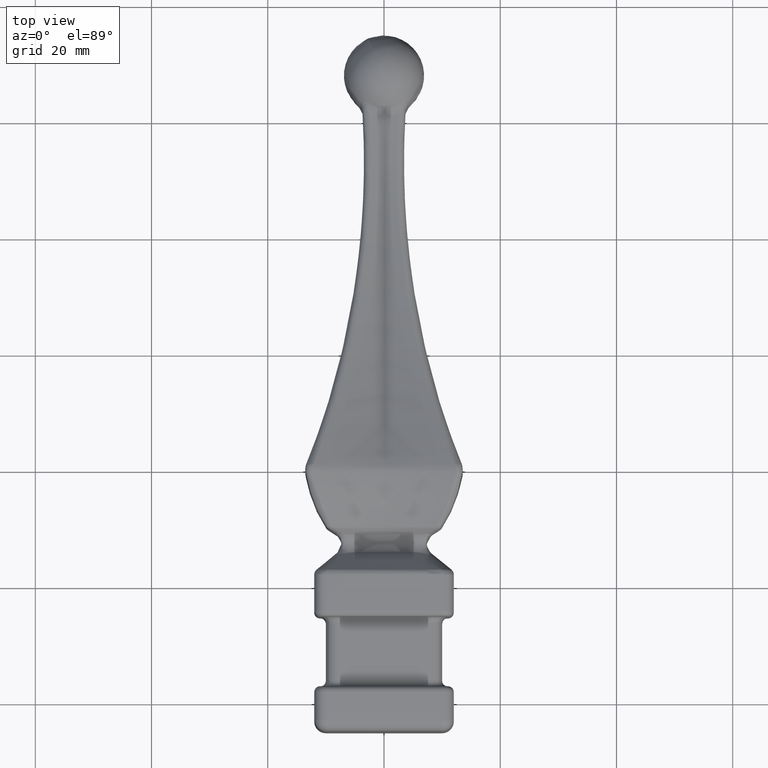
[diagram: clean part render]
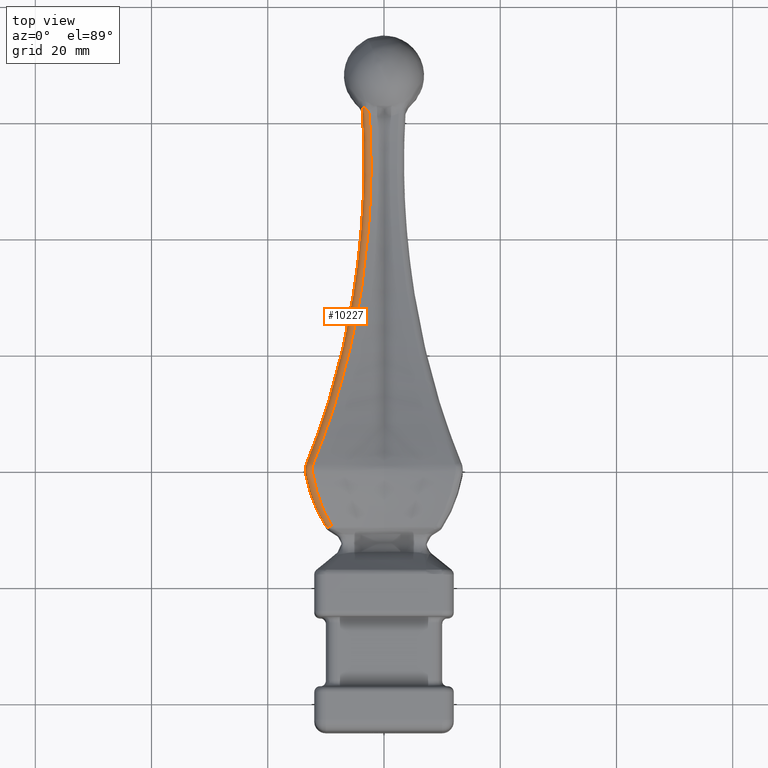
[diagram: same view with one face highlighted and labeled with its STEP entity id]
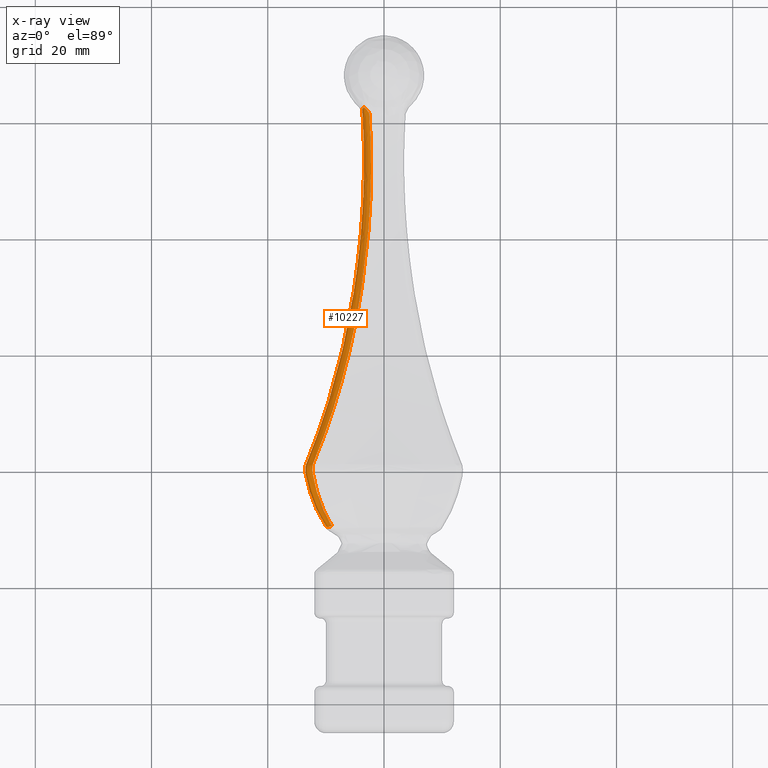
[diagram: x-ray of the same camera — body ghosted, the highlighted face saturated]
A machine part, top view. The second image highlights one B-rep face of the part: STEP entity #10227.
The next image is the same camera in x-ray: the body ghosted, the highlighted face saturated — about 0% of this face is hidden behind the body in this view.
In plain terms, the highlighted face is a freeform B-spline surface patch.
Its self-contained STEP definition (entity closure, byte-faithful):
#24 = CARTESIAN_POINT ( 'NONE',  ( -2.248223844444788178, 56.19453526402708832, 3.449850653065983153 ) ) ;
#80 = CARTESIAN_POINT ( 'NONE',  ( -11.90279690267748158, -6.148090847463154596, 10.77095154286621259 ) ) ;
#122 = FACE_OUTER_BOUND ( 'NONE', #2056, .T. ) ;
#433 = CARTESIAN_POINT ( 'NONE',  ( -12.48452443925548749, -4.618401350564075969, 11.32431623209212468 ) ) ;
#439 = EDGE_CURVE ( 'NONE', #1799, #20851, #14879, .T. ) ;
#508 = VERTEX_POINT ( 'NONE', #13500 ) ;
#516 = CARTESIAN_POINT ( 'NONE',  ( -12.19767723644729607, 0.9769426254686909283, 13.36861548744276007 ) ) ;
#633 = CARTESIAN_POINT ( 'NONE',  ( -3.769577960237448178, 31.72437716418659903, 5.007192858850624262 ) ) ;
#716 = CARTESIAN_POINT ( 'NONE',  ( -8.960507907512987202, 13.57310194948311199, 7.741963945561011862 ) ) ;
#724 = CARTESIAN_POINT ( 'NONE',  ( -9.400431207679385892, -8.996735772360395345, 10.44880235041356897 ) ) ;
#790 = CARTESIAN_POINT ( 'NONE',  ( -4.402747334172143034, 41.15290809311969866, 4.402747334188598316 ) ) ;
#859 = CARTESIAN_POINT ( 'NONE',  ( -8.627982012838199211, 10.66394846674926455, 9.839649501872981929 ) ) ;
#941 = CARTESIAN_POINT ( 'NONE',  ( -11.80478483299507531, 4.982200421302278137, 10.61327611492976963 ) ) ;
#1003 = ORIENTED_EDGE ( 'NONE', *, *, #11480, .T. ) ;
#1019 = CARTESIAN_POINT ( 'NONE',  ( -13.38126812955506217, 0.9418525283698102601, 12.20645514496492723 ) ) ;
#1090 = CARTESIAN_POINT ( 'NONE',  ( -13.40333249899606294, 0.8768738682596370904, 12.22198636324197274 ) ) ;
#1165 = CARTESIAN_POINT ( 'NONE',  ( -12.33043289832003886, -0.03797940678943351189, 13.54667987295747444 ) ) ;
#1252 = CARTESIAN_POINT ( 'NONE',  ( -13.56223076131568028, 1.538491771278700071, 13.56223076131583660 ) ) ;
#1332 = CARTESIAN_POINT ( 'NONE',  ( -12.19395955678100663, 0.9859073258095460979, 13.36495125930506056 ) ) ;
#1408 = CARTESIAN_POINT ( 'NONE',  ( -13.05141452949920122, -2.710405609226620438, 11.86593139384070028 ) ) ;
#1435 = CARTESIAN_POINT ( 'NONE',  ( -6.422514604118228831, 23.94084922074709354, 5.189081815503890915 ) ) ;
#1493 = CARTESIAN_POINT ( 'NONE',  ( -12.30546186044346335, -0.4753845923029134668, 13.51154824768028817 ) ) ;
#1578 = CARTESIAN_POINT ( 'NONE',  ( -13.50667727743624091, -0.5066034133016613650, 12.30171028719113124 ) ) ;
#1600 = VERTEX_POINT ( 'NONE', #15361 ) ;
#1605 = CARTESIAN_POINT ( 'NONE',  ( -5.464387132029138172, 29.03473407034504206, 4.227808590928948007 ) ) ;
#1620 = CARTESIAN_POINT ( 'NONE',  ( -3.252355884852120127, 62.34115619347710435, 3.652156903115480802 ) ) ;
#1655 = CARTESIAN_POINT ( 'NONE',  ( -13.85328956730696781, -0.8537979196460353526, 13.85328956730711880 ) ) ;
#1694 = CARTESIAN_POINT ( 'NONE',  ( -3.631873541139823747, 62.37266320989958501, 3.294522772040415770 ) ) ;
#1726 = CARTESIAN_POINT ( 'NONE',  ( -13.88469314016185940, -0.7173494205376530486, 13.88469314016189671 ) ) ;
#1769 = CARTESIAN_POINT ( 'NONE',  ( -3.748576545962349904, 61.84357532874339114, 2.795965211867254663 ) ) ;
#1799 = VERTEX_POINT ( 'NONE', #8200 ) ;
#2056 = EDGE_LOOP ( 'NONE', ( #20846, #18807, #13390, #9012, #1003, #14157, #3609, #12188 ) ) ;
#2455 = CARTESIAN_POINT ( 'NONE',  ( -11.54408524670200720, 7.006942690020829367, 11.54408524670879999 ) ) ;
#2528 = CARTESIAN_POINT ( 'NONE',  ( -3.431954327142998196, 50.35049512103505265, 2.211377162342109681 ) ) ;
#2604 = CARTESIAN_POINT ( 'NONE',  ( -4.217204919602864699, 37.89822222497094373, 2.980777483193488564 ) ) ;
#2693 = CARTESIAN_POINT ( 'NONE',  ( -9.839649501866508885, 10.66394846675729013, 8.627982012821895808 ) ) ;
#2836 = CARTESIAN_POINT ( 'NONE',  ( -13.54169476243304437, 1.571844469707222913, 13.54169476243305326 ) ) ;
#2916 = CARTESIAN_POINT ( 'NONE',  ( -12.04782467903556942, 1.339642077554493049, 13.22089888252120460 ) ) ;
#3000 = CARTESIAN_POINT ( 'NONE',  ( -12.29453779479637987, 0.4894121498002806381, 13.50172698660118620 ) ) ;
#3077 = CARTESIAN_POINT ( 'NONE',  ( -13.45884331461958006, 0.6831073659126257747, 12.26234079766303076 ) ) ;
#3152 = CARTESIAN_POINT ( 'NONE',  ( -13.94006037297484824, -0.3826489422712650579, 13.94006037297445921 ) ) ;
#3180 = CARTESIAN_POINT ( 'NONE',  ( -13.13493789343376328, 1.548602519664962207, 11.96059040414681540 ) ) ;
#3184 = CARTESIAN_POINT ( 'NONE',  ( -12.19767723644729607, 0.9769426254686909283, 13.36861548744276007 ) ) ;
#3240 = CARTESIAN_POINT ( 'NONE',  ( -12.52142356352416286, -5.462865862734586742, 12.52142356353116703 ) ) ;
#3326 = CARTESIAN_POINT ( 'NONE',  ( -13.42925135781263180, -0.9465935901170402511, 12.22762337275920963 ) ) ;
#3405 = CARTESIAN_POINT ( 'NONE',  ( -13.76400304917824258, -1.298973658027190892, 13.76400304917985018 ) ) ;
#3487 = CARTESIAN_POINT ( 'NONE',  ( -13.31820788544052725, -3.141741869789310027, 13.31820788543708822 ) ) ;
#3570 = CARTESIAN_POINT ( 'NONE',  ( -13.23848225608794671, -1.931846347250810503, 12.04503809015938209 ) ) ;
#3609 = ORIENTED_EDGE ( 'NONE', *, *, #7221, .T. ) ;
#4288 = CARTESIAN_POINT ( 'NONE',  ( -12.87433009579685006, 2.199404871999234068, 11.69636601728563363 ) ) ;
#4300 = CARTESIAN_POINT ( 'NONE',  ( -9.776858195962123688, -8.311032877648415251, 10.85018358288282059 ) ) ;
#4372 = CARTESIAN_POINT ( 'NONE',  ( -3.798385037785361185, 62.93785238516743874, 2.638763930889289178 ) ) ;
#4417 = CARTESIAN_POINT ( 'NONE',  ( -13.50771400292946822, -0.5004763222710708614, 12.30270213297043647 ) ) ;
#4452 = CARTESIAN_POINT ( 'NONE',  ( -2.980777483188201682, 37.89822222492716008, 4.217204919605191726 ) ) ;
#4503 = EDGE_CURVE ( 'NONE', #18398, #10012, #5342, .T. ) ;
#4526 = CARTESIAN_POINT ( 'NONE',  ( -11.42102726341314067, 2.892134802298794494, 12.60257755443041283 ) ) ;
#4597 = CARTESIAN_POINT ( 'NONE',  ( -5.484294055111770483, 32.04773230861393785, 5.484294055093898557 ) ) ;
#4682 = CARTESIAN_POINT ( 'NONE',  ( -13.54512764544084646, 1.566314527618998476, 13.54512764544086423 ) ) ;
#4752 = CARTESIAN_POINT ( 'NONE',  ( -12.25007362603857608, 0.7475185358523521728, 13.44228999254007562 ) ) ;
#4821 = CARTESIAN_POINT ( 'NONE',  ( -12.21040539087637100, 0.9256200652745263380, 13.38690819332969362 ) ) ;
#4902 = CARTESIAN_POINT ( 'NONE',  ( -12.20140543795320376, 0.9621337659603708126, 13.37400130160987999 ) ) ;
#4987 = CARTESIAN_POINT ( 'NONE',  ( -12.32076898977079793, -0.3014265071949955854, 13.53279460127677325 ) ) ;
#5006 = CARTESIAN_POINT ( 'NONE',  ( -11.32432571017037581, -4.618372703081292663, 12.48453438162288442 ) ) ;
#5061 = CARTESIAN_POINT ( 'NONE',  ( -13.50351805690313789, -0.5252360840923767649, 12.29868780021782193 ) ) ;
#5132 = CARTESIAN_POINT ( 'NONE',  ( -11.44926094928572802, -4.219170360027184152, 12.61533578828334079 ) ) ;
#5160 = CARTESIAN_POINT ( 'NONE',  ( -4.441334683114437354, 35.42566771208878151, 3.203183386083685136 ) ) ;
#5219 = CARTESIAN_POINT ( 'NONE',  ( -10.80285376863054303, -8.391535125749429724, 9.732487098091601396 ) ) ;
#5302 = CARTESIAN_POINT ( 'NONE',  ( -8.997235154552653213, -9.640701102045685644, 10.01512400569150785 ) ) ;
#5342 = B_SPLINE_CURVE_WITH_KNOTS ( 'NONE', 3,
 ( #21962, #13050, #9503, #7747, #11864, #4417 ),
 .UNSPECIFIED., .F., .F.,
 ( 4, 2, 4 ),
 ( -5.943326225920290571E-08, 0.0007603462467077775396, 0.001520751926677814435 ),
 .UNSPECIFIED. ) ;
#5344 = CARTESIAN_POINT ( 'NONE',  ( -3.115328726260733205, 62.22348999766997224, 3.706509491035376413 ) ) ;
#5377 = CARTESIAN_POINT ( 'NONE',  ( -13.52180532417211900, -0.4006648856618953980, 12.31285546356686567 ) ) ;
#5843 = DIRECTION ( 'NONE',  ( -0.4915972699089484754, 0.7187936062849494823, 0.4915972699089627418 ) ) ;
#6245 = CARTESIAN_POINT ( 'NONE',  ( -6.156998280119034384, 19.51042322207859669, 7.385984421746105255 ) ) ;
#6330 = CARTESIAN_POINT ( 'NONE',  ( -12.79799194350365887, 3.506474230274760462, 12.79799194351399017 ) ) ;
#6406 = CARTESIAN_POINT ( 'NONE',  ( -3.863831940853693858, 50.31891960752938786, 3.863831940847366919 ) ) ;
#6476 = CARTESIAN_POINT ( 'NONE',  ( -13.41356379060010440, 0.8444833756077366749, 12.22930620683969849 ) ) ;
#6497 = CARTESIAN_POINT ( 'NONE',  ( -2.523706378309665155, 61.43058906007769338, 3.695224056027350823 ) ) ;
#6548 = CARTESIAN_POINT ( 'NONE',  ( -12.19673520044788972, 0.9792140910690176892, 13.36768699753046086 ) ) ;
#6639 = CARTESIAN_POINT ( 'NONE',  ( -13.36953209988951308, 0.9744822882972673517, 12.19835714437990681 ) ) ;
#6719 = CARTESIAN_POINT ( 'NONE',  ( -12.26234079766269325, 0.6831073659128157338, 13.45884331461953565 ) ) ;
#6737 = CARTESIAN_POINT ( 'NONE',  ( -12.30270213297036364, -0.5004763222710713055, 13.50771400292952507 ) ) ;
#6743 = CARTESIAN_POINT ( 'NONE',  ( -11.58129466433951471, 5.603009350150074397, 10.38733853637755900 ) ) ;
#6791 = CARTESIAN_POINT ( 'NONE',  ( -13.50772837704169405, -0.5003923990440951597, 12.30271588560029805 ) ) ;
#6817 = CARTESIAN_POINT ( 'NONE',  ( -3.432213147307811241, 50.95405950119681648, 2.213525492999731448 ) ) ;
#6873 = CARTESIAN_POINT ( 'NONE',  ( -11.21170854079714374, -4.951049307261612853, 12.36634588744684748 ) ) ;
#6964 = CARTESIAN_POINT ( 'NONE',  ( -10.67877515922596032, -6.371196328522109376, 11.80560033026454647 ) ) ;
#6992 = CARTESIAN_POINT ( 'NONE',  ( -3.288799620354170283, 35.30751676384008420, 4.526068070377410102 ) ) ;
#7042 = CARTESIAN_POINT ( 'NONE',  ( -9.732487098094239286, -8.391535125751687474, 10.80285376863018243 ) ) ;
#7063 = CARTESIAN_POINT ( 'NONE',  ( -9.213012362035419400, 12.75045876638583131, 7.996521701733920295 ) ) ;
#7066 = CARTESIAN_POINT ( 'NONE',  ( -2.523706378309665155, 61.43058906007769338, 3.695224056027350823 ) ) ;
#7110 = CARTESIAN_POINT ( 'NONE',  ( -13.51757662920072711, -0.4338144889486579281, 12.30980438177495806 ) ) ;
#7140 = CARTESIAN_POINT ( 'NONE',  ( -10.37899743541500364, 5.571035020128219273, 11.57336052441662311 ) ) ;
#7221 = EDGE_CURVE ( 'NONE', #20851, #1600, #19613, .T. ) ;
#7228 = CARTESIAN_POINT ( 'NONE',  ( -8.013526271529634926, 12.69445473075777464, 9.229881943224519603 ) ) ;
#7325 = CARTESIAN_POINT ( 'NONE',  ( -3.571867649209936157, 62.42559179444560158, 3.391111598614764855 ) ) ;
#7422 = DIRECTION ( 'NONE',  ( 0.000000000000000000, -0.5645205233115216936, 0.8254190322255028356 ) ) ;
#7622 = AXIS2_PLACEMENT_3D ( 'NONE', #18154, #5843, #7422 ) ;
#7747 = CARTESIAN_POINT ( 'NONE',  ( -13.55402796878899530, 0.0009056597423814681047, 12.33586052695374313 ) ) ;
#7854 = CARTESIAN_POINT ( 'NONE',  ( -2.686723043082017259, 40.99846847921598680, 3.921187517363745378 ) ) ;
#7922 = CARTESIAN_POINT ( 'NONE',  ( -13.39110200500840975, 1.949796063455670803, 13.39110200500759262 ) ) ;
#7948 = CARTESIAN_POINT ( 'NONE',  ( -12.30774465884626601, 0.3783702083953713324, 13.51861134896864769 ) ) ;
#7976 = B_SPLINE_CURVE_WITH_KNOTS ( 'NONE', 3,
 ( #23156, #17872, #18199, #22714, #20610, #11309, #433, #80, #16506, #17118, #16900, #13374 ),
 .UNSPECIFIED., .F., .F.,
 ( 4, 2, 2, 2, 2, 4 ),
 ( -5.992872993461137931E-08, 0.001313099461609976018, 0.002626258851949887611, 0.005252577632629711231, 0.007878896413309533983, 0.01050521519398935587 ),
 .UNSPECIFIED. ) ;
#7999 = CARTESIAN_POINT ( 'NONE',  ( -3.984080229091943703, 47.28301666521502966, 3.984080229075713575 ) ) ;
#8083 = CARTESIAN_POINT ( 'NONE',  ( -2.638763930889279408, 62.93785238516740321, 3.798385037785392715 ) ) ;
#8162 = CARTESIAN_POINT ( 'NONE',  ( -3.868863146074934978, 59.53371391711968386, 3.868863146069108971 ) ) ;
#8200 = CARTESIAN_POINT ( 'NONE',  ( -10.01512400570120498, -9.640701102031231429, 8.997235154561668224 ) ) ;
#8229 = CARTESIAN_POINT ( 'NONE',  ( -12.20038990140630553, 0.9661895485920339866, 13.37253709133566204 ) ) ;
#8311 = CARTESIAN_POINT ( 'NONE',  ( -13.63908405949562486, 1.400484186054067992, 13.63908405949599079 ) ) ;
#8388 = CARTESIAN_POINT ( 'NONE',  ( -13.52139683395512293, 0.3596715241581475153, 12.30991231324542845 ) ) ;
#8465 = CARTESIAN_POINT ( 'NONE',  ( -13.85593945931273119, 0.8496787735769865124, 13.85593945931246296 ) ) ;
#8537 = CARTESIAN_POINT ( 'NONE',  ( -13.53786598107895323, -0.2355465603880719794, 12.32439489359360252 ) ) ;
#8628 = CARTESIAN_POINT ( 'NONE',  ( -12.29868780021769403, -0.5252360840923738783, 13.50351805690318763 ) ) ;
#8708 = CARTESIAN_POINT ( 'NONE',  ( -13.89607406561708380, -0.6620306731890510665, 13.89607406561710690 ) ) ;
#8768 = B_SPLINE_CURVE_WITH_KNOTS ( 'NONE', 3,
 ( #3184, #23239, #7140, #18042, #7228, #19863, #12451, #9064, #6992, #21685, #16050, #12694, #8982, #10885, #21367, #24, #17876, #7066 ),
 .UNSPECIFIED., .F., .F.,
 ( 4, 2, 2, 2, 2, 2, 2, 2, 4 ),
 ( -6.000000000590947881E-08, 0.007886620862335245313, 0.01577330172467049721, 0.03154666344934100447, 0.03943334431167624943, 0.04337668474284388231, 0.04732002517401152214, 0.05520670603634676016, 0.06309338689868199124 ),
 .UNSPECIFIED. ) ;
#8789 = CARTESIAN_POINT ( 'NONE',  ( -11.52925954599040104, -7.602540759423842331, 11.52925954599395553 ) ) ;
#8868 = CARTESIAN_POINT ( 'NONE',  ( -10.34030679734054559, -9.558936278622990557, 10.34030679735184499 ) ) ;
#8929 = EDGE_CURVE ( 'NONE', #19732, #508, #9384, .T. ) ;
#8953 = CARTESIAN_POINT ( 'NONE',  ( -11.86593139384248374, -2.710405609227513501, 13.05141452949949255 ) ) ;
#8982 = CARTESIAN_POINT ( 'NONE',  ( -2.470401182900002546, 44.40736026944478709, 3.700616001138707922 ) ) ;
#9012 = ORIENTED_EDGE ( 'NONE', *, *, #4503, .T. ) ;
#9064 = CARTESIAN_POINT ( 'NONE',  ( -3.632071813035484098, 32.73553211399496377, 4.869592651168730413 ) ) ;
#9076 = CARTESIAN_POINT ( 'NONE',  ( -3.033350388177439072, 62.13222838701520345, 3.723208996789211245 ) ) ;
#9086 = CARTESIAN_POINT ( 'NONE',  ( -12.19767723644729607, 0.9769426254686909283, 13.36861548744276007 ) ) ;
#9384 = B_SPLINE_CURVE_WITH_KNOTS ( 'NONE', 3,
 ( #16312, #19647, #12466, #9076, #5344, #1620, #19731, #14349, #10739, #23336, #7325, #1694, #19798, #17976, #23412, #1769, #16229, #18054 ),
 .UNSPECIFIED., .F., .F.,
 ( 4, 2, 2, 2, 2, 2, 2, 2, 4 ),
 ( 2.030032399778958350E-15, 0.0007444630286634647265, 0.001116694542994174470, 0.001302810300159535414, 0.001488926057324896140, 0.001675041814490256867, 0.001861157571655617377, 0.002233389085986340564, 0.002977852114647786073 ),
 .UNSPECIFIED. ) ;
#9503 = CARTESIAN_POINT ( 'NONE',  ( -13.50698150542802800, 0.5028577278399699590, 12.29850997811512059 ) ) ;
#9562 = CARTESIAN_POINT ( 'NONE',  ( -12.30270213297036364, -0.5004763222710713055, 13.50771400292952507 ) ) ;
#9609 = CARTESIAN_POINT ( 'NONE',  ( -13.36861548744270856, 0.9769426254686837119, 12.19767723644735824 ) ) ;
#9677 = CARTESIAN_POINT ( 'NONE',  ( -5.007192858853191986, 31.72437716414287223, 3.769577960231970337 ) ) ;
#9812 = B_SPLINE_CURVE_WITH_KNOTS ( 'NONE', 3,
 ( #12210, #17628, #12295, #6817, #19468, #12447, #5160, #1605, #17792, #21273, #1435, #21362, #14014, #7063, #10472, #14253, #6743, #17542, #23080, #19712, #3180, #21118 ),
 .UNSPECIFIED., .F., .F.,
 ( 4, 2, 2, 2, 2, 2, 2, 2, 2, 2, 4 ),
 ( 0.003593303953008576083, 0.01153155944662574532, 0.01946981494024291673, 0.03534632592747725260, 0.03931545367428582877, 0.04328458142109441187, 0.05122283691471155725, 0.05916109240832869570, 0.06313022015513727880, 0.06511478402854156688, 0.06709934790194584109 ),
 .UNSPECIFIED. ) ;
#9834 = CARTESIAN_POINT ( 'NONE',  ( -3.449391815735200595, 56.62704108878103426, 2.249091549836525150 ) ) ;
#9849 = CARTESIAN_POINT ( 'NONE',  ( -10.77095949093749994, -6.148071323023853729, 11.90280527964085699 ) ) ;
#9909 = CARTESIAN_POINT ( 'NONE',  ( -5.963592964995582335, 29.04094732719951821, 5.963592964984351319 ) ) ;
#9981 = CARTESIAN_POINT ( 'NONE',  ( -5.460242715525834178, 22.53190200970158941, 6.692733564547446612 ) ) ;
#10012 = VERTEX_POINT ( 'NONE', #21937 ) ;
#10062 = CARTESIAN_POINT ( 'NONE',  ( -13.37400130160984801, 0.9621337659602966497, 12.20140543795325883 ) ) ;
#10136 = CARTESIAN_POINT ( 'NONE',  ( -13.70876764105513246, 1.256784635202361722, 13.70876764105459067 ) ) ;
#10207 = CARTESIAN_POINT ( 'NONE',  ( -12.30991231324518687, 0.3596715241595110357, 13.52139683395505543 ) ) ;
#10227 = ADVANCED_FACE ( 'NONE', ( #122 ), #20939, .T. ) ;
#10291 = CARTESIAN_POINT ( 'NONE',  ( -13.53651159077174526, 1.580111780176339353, 13.53651159077179855 ) ) ;
#10367 = CARTESIAN_POINT ( 'NONE',  ( -13.36768699753040934, 0.9792140910689969280, 12.19673520044796078 ) ) ;
#10450 = CARTESIAN_POINT ( 'NONE',  ( -13.50615118937241199, -0.5097088866048387068, 12.30120697062109691 ) ) ;
#10472 = CARTESIAN_POINT ( 'NONE',  ( -9.954568176066437957, 10.33677143971205048, 8.744111148807586886 ) ) ;
#10522 = CARTESIAN_POINT ( 'NONE',  ( -13.50838453510239034, -0.4961972667008682780, 12.30318451365496912 ) ) ;
#10615 = CARTESIAN_POINT ( 'NONE',  ( -12.22762337275810296, -0.9465935901170828837, 13.42925135781241863 ) ) ;
#10697 = CARTESIAN_POINT ( 'NONE',  ( -9.375420917482845340, -9.036681003958525693, 10.42190124078923219 ) ) ;
#10739 = CARTESIAN_POINT ( 'NONE',  ( -3.446011998481944172, 62.44334882949047483, 3.529125878908122349 ) ) ;
#10769 = CARTESIAN_POINT ( 'NONE',  ( -11.87898892354403202, -6.911310455332640323, 11.87898892353742752 ) ) ;
#10885 = CARTESIAN_POINT ( 'NONE',  ( -2.272466878236810039, 48.33731338232261976, 3.496679037149846625 ) ) ;
#11309 = CARTESIAN_POINT ( 'NONE',  ( -12.74012494436458454, -3.827608631173788023, 11.56839867573606639 ) ) ;
#11375 = EDGE_CURVE ( 'NONE', #508, #18398, #9812, .T. ) ;
#11378 = CARTESIAN_POINT ( 'NONE',  ( -12.22674938425930868, 0.8621772917826430183, 13.41070860097108053 ) ) ;
#11480 = EDGE_CURVE ( 'NONE', #10012, #1799, #7976, .T. ) ;
#11594 = CARTESIAN_POINT ( 'NONE',  ( -2.211377162345854686, 50.35049512102410318, 3.431954327143848626 ) ) ;
#11745 = CARTESIAN_POINT ( 'NONE',  ( -3.921187517365302799, 40.99846847923800652, 2.686723043090809337 ) ) ;
#11824 = CARTESIAN_POINT ( 'NONE',  ( -10.13275614324437512, 11.30313112845079715, 10.13275614323025131 ) ) ;
#11864 = CARTESIAN_POINT ( 'NONE',  ( -13.54672219189079563, -0.2516042753707571356, 12.33076236057471142 ) ) ;
#11893 = CARTESIAN_POINT ( 'NONE',  ( -13.52900945861640736, 1.595413136371608420, 13.52900945861651216 ) ) ;
#11955 = CARTESIAN_POINT ( 'NONE',  ( -13.52691648795842738, 1.600773869168594210, 13.52691648795844692 ) ) ;
#12040 = CARTESIAN_POINT ( 'NONE',  ( -13.54667987295745490, -0.03797940679144739401, 12.33043289832058775 ) ) ;
#12114 = CARTESIAN_POINT ( 'NONE',  ( -13.96572705236419942, -0.04308259252941726986, 13.96572705236521550 ) ) ;
#12185 = CARTESIAN_POINT ( 'NONE',  ( -13.50172698660093573, 0.4894121498005918891, 12.29453779479593045 ) ) ;
#12188 = ORIENTED_EDGE ( 'NONE', *, *, #12563, .T. ) ;
#12210 = CARTESIAN_POINT ( 'NONE',  ( -3.695224056026934711, 61.43058906007142639, 2.523706378309225951 ) ) ;
#12267 = CARTESIAN_POINT ( 'NONE',  ( -12.04503809016354232, -1.931846347250658180, 13.23848225608907114 ) ) ;
#12295 = CARTESIAN_POINT ( 'NONE',  ( -3.449601854812960333, 56.17701402384282972, 2.247909891662708937 ) ) ;
#12347 = CARTESIAN_POINT ( 'NONE',  ( -12.30456690580621171, -0.4837052869231554530, 13.51030539660971108 ) ) ;
#12427 = CARTESIAN_POINT ( 'NONE',  ( -12.30271588560023588, -0.5003923990441018210, 13.50772837704176155 ) ) ;
#12447 = CARTESIAN_POINT ( 'NONE',  ( -3.897992912293513079, 40.57451386293882933, 2.661888795475149561 ) ) ;
#12451 = CARTESIAN_POINT ( 'NONE',  ( -4.868208952265602463, 25.07156246923149112, 6.103746555218289238 ) ) ;
#12466 = CARTESIAN_POINT ( 'NONE',  ( -2.796620584201452875, 61.84475045251418379, 3.748846696855755667 ) ) ;
#12498 = CARTESIAN_POINT ( 'NONE',  ( -13.85646695438762777, -0.8373545383933431729, 13.85646695438768994 ) ) ;
#12563 = EDGE_CURVE ( 'NONE', #1600, #17728, #13982, .T. ) ;
#12589 = CARTESIAN_POINT ( 'NONE',  ( -12.31285546356680882, -0.4006648856617398557, 13.52180532417219716 ) ) ;
#12694 = CARTESIAN_POINT ( 'NONE',  ( -2.554689576418710750, 43.09787803144320151, 3.786496667960323137 ) ) ;
#13050 = CARTESIAN_POINT ( 'NONE',  ( -13.45352770620779737, 0.7454325682719350477, 12.25632294754217533 ) ) ;
#13306 = CARTESIAN_POINT ( 'NONE',  ( -7.741963945556753934, 13.57310194944834869, 8.960507907518081794 ) ) ;
#13374 = CARTESIAN_POINT ( 'NONE',  ( -10.01512400570120498, -9.640701102031231429, 8.997235154561668224 ) ) ;
#13381 = CARTESIAN_POINT ( 'NONE',  ( -3.528660303183735358, 47.22458712349514087, 2.302189102655563868 ) ) ;
#13390 = ORIENTED_EDGE ( 'NONE', *, *, #11375, .T. ) ;
#13394 = CARTESIAN_POINT ( 'NONE',  ( -10.46168028745711354, -6.886982773565827998, 11.57669964646997585 ) ) ;
#13463 = CARTESIAN_POINT ( 'NONE',  ( -3.811697023640891580, 56.50967674097948645, 3.811697023646884563 ) ) ;
#13500 = CARTESIAN_POINT ( 'NONE',  ( -3.695224056026934711, 61.43058906007142639, 2.523706378309225951 ) ) ;
#13542 = CARTESIAN_POINT ( 'NONE',  ( -7.783308950283614358, 20.04093233282458542, 7.783308950263919002 ) ) ;
#13608 = CARTESIAN_POINT ( 'NONE',  ( -13.05772237916842293, 2.814780680116157896, 13.05772237917195611 ) ) ;
#13685 = CARTESIAN_POINT ( 'NONE',  ( -12.22198636324183774, 0.8768738682591395994, 13.40333249899623347 ) ) ;
#13764 = CARTESIAN_POINT ( 'NONE',  ( -13.38690819332971671, 0.9256200652742205826, 12.21040539087638699 ) ) ;
#13829 = CARTESIAN_POINT ( 'NONE',  ( -12.20645514496484374, 0.9418525283696824735, 13.38126812955514744 ) ) ;
#13900 = CARTESIAN_POINT ( 'NONE',  ( -13.53279460127675904, -0.3014265071945101959, 12.32076898977090273 ) ) ;
#13982 = B_SPLINE_CURVE_WITH_KNOTS ( 'NONE', 3,
 ( #9562, #20591, #18775, #7948, #22168, #22024, #11378, #516 ),
 .UNSPECIFIED., .F., .F.,
 ( 4, 2, 2, 4 ),
 ( -5.999999998781168022E-08, 0.0007538442809195564304, 0.001130796421379328233, 0.001507748561839100361 ),
 .UNSPECIFIED. ) ;
#13987 = CARTESIAN_POINT ( 'NONE',  ( -13.96052200919904962, 0.1841153606080701277, 13.96052200919905317 ) ) ;
#14014 = CARTESIAN_POINT ( 'NONE',  ( -7.856967422305180193, 17.66019300185967111, 6.630885813753544689 ) ) ;
#14067 = CARTESIAN_POINT ( 'NONE',  ( -12.61533578828352198, -4.219170360028073219, 11.44926094928761806 ) ) ;
#14141 = CARTESIAN_POINT ( 'NONE',  ( -13.85710191274126757, -0.8340652588891936947, 13.85710191274134928 ) ) ;
#14157 = ORIENTED_EDGE ( 'NONE', *, *, #439, .T. ) ;
#14223 = CARTESIAN_POINT ( 'NONE',  ( -13.85073757689208662, -0.8669521810696065867, 13.85073757689207774 ) ) ;
#14253 = CARTESIAN_POINT ( 'NONE',  ( -11.16262982213287280, 6.778637263769911492, 9.964173630148602356 ) ) ;
#14305 = CARTESIAN_POINT ( 'NONE',  ( -12.29666428334047801, -0.5376566796935973169, 13.50140304014764325 ) ) ;
#14349 = CARTESIAN_POINT ( 'NONE',  ( -3.396723099897188902, 62.42786497454219585, 3.567817762555100636 ) ) ;
#14381 = CARTESIAN_POINT ( 'NONE',  ( -13.86524582984781162, -0.7999798512792967164, 13.86524582984795551 ) ) ;
#14879 = CIRCLE ( 'NONE', #7622, 0.9999999999999996669 ) ;
#15099 = CARTESIAN_POINT ( 'NONE',  ( -11.69636601728092984, 2.199404871999816269, 12.87433009579548404 ) ) ;
#15176 = CARTESIAN_POINT ( 'NONE',  ( -7.120409269704098598, 23.00432760762199180, 7.120409269714989442 ) ) ;
#15249 = CARTESIAN_POINT ( 'NONE',  ( -4.701166080800727620, 38.12792160248796591, 4.701166080818388160 ) ) ;
#15324 = CARTESIAN_POINT ( 'NONE',  ( -11.29623406516835615, 6.391232765588092946, 10.09914229369396033 ) ) ;
#15361 = CARTESIAN_POINT ( 'NONE',  ( -12.30270213297036364, -0.5004763222710713055, 13.50771400292952507 ) ) ;
#15410 = CARTESIAN_POINT ( 'NONE',  ( -2.375923727255544904, 59.77906557867611781, 3.562759125217406009 ) ) ;
#15481 = CARTESIAN_POINT ( 'NONE',  ( -13.53162496009078986, 1.587979800077253811, 13.53162496009086269 ) ) ;
#15548 = CARTESIAN_POINT ( 'NONE',  ( -13.53445814343625209, 1.583231787854254335, 13.53445814343631604 ) ) ;
#15625 = CARTESIAN_POINT ( 'NONE',  ( -12.32439489359376772, -0.2355465603891051529, 13.53786598107904027 ) ) ;
#15645 = CARTESIAN_POINT ( 'NONE',  ( -11.56840857530102973, -3.827575153167911193, 12.74013530913124370 ) ) ;
#15704 = CARTESIAN_POINT ( 'NONE',  ( -13.29056207051242211, 1.167982568877024008, 12.11848636320160999 ) ) ;
#15782 = CARTESIAN_POINT ( 'NONE',  ( -13.92599921453831513, -0.4947431303237822542, 13.92599921453846434 ) ) ;
#15853 = CARTESIAN_POINT ( 'NONE',  ( -13.86855803560795763, -0.7862529356707175232, 13.86855803560804823 ) ) ;
#15937 = CARTESIAN_POINT ( 'NONE',  ( -12.80739950401615701, -4.711251444699085411, 12.80739950401956939 ) ) ;
#16024 = CARTESIAN_POINT ( 'NONE',  ( -10.38340695789523949, -7.059477328863430934, 11.49387387461986876 ) ) ;
#16050 = CARTESIAN_POINT ( 'NONE',  ( -2.758457842424546502, 40.49079789563734266, 3.992793830233204666 ) ) ;
#16097 = CARTESIAN_POINT ( 'NONE',  ( -9.885458250316897733, -10.15949358203598862, 9.885458250316892403 ) ) ;
#16178 = CARTESIAN_POINT ( 'NONE',  ( -13.53777388149086924, -2.328396550453926572, 13.53777388148480476 ) ) ;
#16229 = CARTESIAN_POINT ( 'NONE',  ( -3.731018011431741055, 61.63773924430265794, 2.655469024394625954 ) ) ;
#16312 = CARTESIAN_POINT ( 'NONE',  ( -2.523706378309665155, 61.43058906007769338, 3.695224056027350823 ) ) ;
#16506 = CARTESIAN_POINT ( 'NONE',  ( -11.57669241233035073, -6.886998005491735242, 10.46167344811573052 ) ) ;
#16900 = CARTESIAN_POINT ( 'NONE',  ( -10.44880007425088131, -8.996739152213846680, 9.400429091503228918 ) ) ;
#16907 = CARTESIAN_POINT ( 'NONE',  ( -13.22089888252081380, 1.339642077554619171, 12.04782467903445742 ) ) ;
#16974 = CARTESIAN_POINT ( 'NONE',  ( -10.09914229368585836, 6.391232765592114617, 11.29623406516503969 ) ) ;
#17064 = CARTESIAN_POINT ( 'NONE',  ( -7.385984421751436990, 19.51042322204381918, 6.156998280114576616 ) ) ;
#17118 = CARTESIAN_POINT ( 'NONE',  ( -10.85017937761812590, -8.311040068176104967, 9.776854252394683087 ) ) ;
#17140 = CARTESIAN_POINT ( 'NONE',  ( -12.60257755443253558, 2.892134802298889529, 11.42102726342121066 ) ) ;
#17215 = CARTESIAN_POINT ( 'NONE',  ( -3.562759125218037504, 59.77906557868394088, 2.375923727255955686 ) ) ;
#17283 = CARTESIAN_POINT ( 'NONE',  ( -13.61461288436254868, 1.447190906807956479, 13.61461288436291461 ) ) ;
#17368 = CARTESIAN_POINT ( 'NONE',  ( -12.19885821162449169, 0.9722727516432225769, 13.37032429199827277 ) ) ;
#17447 = CARTESIAN_POINT ( 'NONE',  ( -12.19730864269380355, 0.9781737144642463910, 13.36814956481220840 ) ) ;
#17463 = CARTESIAN_POINT ( 'NONE',  ( -11.98926393624583220, -2.193100627539902536, 13.18030409120434499 ) ) ;
#17517 = CARTESIAN_POINT ( 'NONE',  ( -12.19173940477103812, 0.9912622010564927644, 13.36276301038712511 ) ) ;
#17542 = CARTESIAN_POINT ( 'NONE',  ( -12.23354179892118054, 3.855460933943908319, 11.04735312861530971 ) ) ;
#17599 = CARTESIAN_POINT ( 'NONE',  ( -12.19835714437983043, 0.9744822882972887790, 13.36953209988956637 ) ) ;
#17628 = CARTESIAN_POINT ( 'NONE',  ( -3.531057162300552221, 58.79815374709117037, 2.340519311815913994 ) ) ;
#17687 = CARTESIAN_POINT ( 'NONE',  ( -13.50140304014757753, -0.5376566796935767778, 12.29666428334051709 ) ) ;
#17728 = VERTEX_POINT ( 'NONE', #9086 ) ;
#17769 = CARTESIAN_POINT ( 'NONE',  ( -11.80560033026259603, -6.371196328522323427, 10.67877515921773934 ) ) ;
#17785 = CARTESIAN_POINT ( 'NONE',  ( -12.16493760421732873, -1.351937930735754412, 13.36371630529085941 ) ) ;
#17792 = CARTESIAN_POINT ( 'NONE',  ( -5.686332563332495482, 27.75882369919522219, 4.450302183466364525 ) ) ;
#17845 = CARTESIAN_POINT ( 'NONE',  ( -10.75691938117069313, -8.927775988899787407, 10.75691938116738555 ) ) ;
#17872 = CARTESIAN_POINT ( 'NONE',  ( -13.43563548768252858, -0.9266781943235478103, 12.23374364986664808 ) ) ;
#17876 = CARTESIAN_POINT ( 'NONE',  ( -2.341543965138021210, 58.81287822322735082, 3.531975426653249706 ) ) ;
#17933 = CARTESIAN_POINT ( 'NONE',  ( -12.30120697062103474, -0.5097088866048479217, 13.50615118937247949 ) ) ;
#17976 = CARTESIAN_POINT ( 'NONE',  ( -3.706602450064345966, 62.22174268571438915, 3.113980084395032488 ) ) ;
#18042 = CARTESIAN_POINT ( 'NONE',  ( -8.758556865248563028, 10.29250182258087598, 9.968884417657706720 ) ) ;
#18054 = CARTESIAN_POINT ( 'NONE',  ( -3.695224056026934711, 61.43058906007142639, 2.523706378309225951 ) ) ;
#18154 = CARTESIAN_POINT ( 'NONE',  ( -9.153329098150392085, -9.158058151088829035, 9.153329098150415177 ) ) ;
#18199 = CARTESIAN_POINT ( 'NONE',  ( -13.35396446043868224, -1.349082820353896484, 12.15556208119934389 ) ) ;
#18398 = VERTEX_POINT ( 'NONE', #9609 ) ;
#18718 = CARTESIAN_POINT ( 'NONE',  ( -8.997235154552631897, -9.640701102045676762, 10.01512400569150962 ) ) ;
#18744 = CARTESIAN_POINT ( 'NONE',  ( -4.264385058413410867, 28.65076268061130449, 5.501199086786271231 ) ) ;
#18775 = CARTESIAN_POINT ( 'NONE',  ( -12.33586405237268835, 0.001620412387522162691, 13.55403656510712196 ) ) ;
#18807 = ORIENTED_EDGE ( 'NONE', *, *, #8929, .T. ) ;
#18903 = CARTESIAN_POINT ( 'NONE',  ( -12.02921853384671458, 5.607009297902814993, 12.02921853382573047 ) ) ;
#18968 = CARTESIAN_POINT ( 'NONE',  ( -5.501199086788051140, 28.65076268058883713, 4.264385058408515228 ) ) ;
#19046 = CARTESIAN_POINT ( 'NONE',  ( -13.53162619143275158, 1.588712217006200245, 13.53162619143281376 ) ) ;
#19123 = CARTESIAN_POINT ( 'NONE',  ( -13.36814956481214978, 0.9781737144642388415, 12.19730864269387283 ) ) ;
#19198 = CARTESIAN_POINT ( 'NONE',  ( -13.74915683925642007, 1.158106036150303497, 13.74915683925666521 ) ) ;
#19272 = CARTESIAN_POINT ( 'NONE',  ( -13.44228999254007562, 0.7475185358517626444, 12.25007362603832384 ) ) ;
#19357 = CARTESIAN_POINT ( 'NONE',  ( -12.32800838424394918, 0.09430008346721467649, 13.54407332997328162 ) ) ;
#19440 = CARTESIAN_POINT ( 'NONE',  ( -12.30171028719104953, -0.5066034133016673602, 13.50667727743630131 ) ) ;
#19468 = CARTESIAN_POINT ( 'NONE',  ( -3.496670177654473743, 48.35231863837389454, 2.272498633630139153 ) ) ;
#19513 = CARTESIAN_POINT ( 'NONE',  ( -12.30980438177488523, -0.4338144889488053102, 13.51757662920077863 ) ) ;
#19597 = CARTESIAN_POINT ( 'NONE',  ( -11.49387387461942112, -7.059477328865660262, 10.38340695789795198 ) ) ;
#19613 = B_SPLINE_CURVE_WITH_KNOTS ( 'NONE', 3,
 ( #20495, #724, #4300, #13394, #9849, #5006, #15645, #17463, #17785, #6737 ),
 .UNSPECIFIED., .F., .F.,
 ( 4, 2, 2, 2, 4 ),
 ( 0.0004934043431214701686, 0.003116820333194199842, 0.005740236323266928974, 0.008363652313339658972, 0.01098706830341238810 ),
 .UNSPECIFIED. ) ;
#19647 = CARTESIAN_POINT ( 'NONE',  ( -2.656105571490546158, 61.63873998959870448, 3.731190932505277669 ) ) ;
#19687 = CARTESIAN_POINT ( 'NONE',  ( -10.42190124078762636, -9.036681003964792680, 9.375420917493592299 ) ) ;
#19712 = CARTESIAN_POINT ( 'NONE',  ( -12.90600556105860797, 2.121408518378927521, 11.72850180780863560 ) ) ;
#19731 = CARTESIAN_POINT ( 'NONE',  ( -3.299974837843140385, 62.37636615771689463, 3.628989365559950553 ) ) ;
#19732 = VERTEX_POINT ( 'NONE', #6497 ) ;
#19767 = CARTESIAN_POINT ( 'NONE',  ( -13.51154824768021001, -0.4753845923029950682, 12.30546186044353618 ) ) ;
#19798 = CARTESIAN_POINT ( 'NONE',  ( -3.654175481840362227, 62.33751469126121236, 3.247791906123100869 ) ) ;
#19863 = CARTESIAN_POINT ( 'NONE',  ( -5.970959310016738186, 20.02271085645278248, 7.201706112030672458 ) ) ;
#20495 = CARTESIAN_POINT ( 'NONE',  ( -8.997235154552631897, -9.640701102045676762, 10.01512400569150962 ) ) ;
#20563 = CARTESIAN_POINT ( 'NONE',  ( -2.302189102664478959, 47.22458712351714638, 3.528660303185128022 ) ) ;
#20591 = CARTESIAN_POINT ( 'NONE',  ( -12.33052244821547028, -0.2537321086241056123, 13.54638867544627168 ) ) ;
#20610 = CARTESIAN_POINT ( 'NONE',  ( -13.07025148393651648, -2.601760425310525537, 11.88404013588831631 ) ) ;
#20630 = CARTESIAN_POINT ( 'NONE',  ( -6.692733564545947367, 22.53190200972405322, 5.460242715530494451 ) ) ;
#20708 = CARTESIAN_POINT ( 'NONE',  ( -10.61327611494581191, 4.982200421302507287, 11.80478483299933323 ) ) ;
#20797 = CARTESIAN_POINT ( 'NONE',  ( -2.249091549832833437, 56.62704108879197662, 3.449391815734289768 ) ) ;
#20846 = ORIENTED_EDGE ( 'NONE', *, *, #21370, .T. ) ;
#20851 = VERTEX_POINT ( 'NONE', #18718 ) ;
#20867 = CARTESIAN_POINT ( 'NONE',  ( -13.36495125930501260, 0.9859073258095388814, 12.19395955678111321 ) ) ;
#20931 = CARTESIAN_POINT ( 'NONE',  ( -13.36276301038706471, 0.9912622010564736685, 12.19173940477106655 ) ) ;
#20939 =( BOUNDED_SURFACE ( )  B_SPLINE_SURFACE ( 3, 2, ( 
 ( #4372, #22442, #8083 ),
 ( #17215, #8162, #15410 ),
 ( #9834, #13463, #20797 ),
 ( #2528, #6406, #11594 ),
 ( #13381, #7999, #20563 ),
 ( #11745, #790, #7854 ),
 ( #2604, #15249, #4452 ),
 ( #9677, #4597, #633 ),
 ( #18968, #9909, #18744 ),
 ( #20630, #15176, #9981 ),
 ( #17064, #13542, #6245 ),
 ( #716, #22292, #13306 ),
 ( #2693, #11824, #859 ),
 ( #15324, #2455, #16974 ),
 ( #941, #18903, #20708 ),
 ( #17140, #6330, #4526 ),
 ( #4288, #13608, #15099 ),
 ( #16907, #7922, #2916 ),
 ( #15704, #21166, #22970 ),
 ( #20931, #11955, #17517 ),
 ( #20867, #11893, #1332 ),
 ( #10367, #19046, #6548 ),
 ( #19123, #15481, #17447 ),
 ( #6639, #15548, #17599 ),
 ( #22740, #10291, #17368 ),
 ( #21095, #2836, #8229 ),
 ( #10062, #4682, #4902 ),
 ( #1019, #1252, #13829 ),
 ( #13764, #22654, #4821 ),
 ( #1090, #17283, #13685 ),
 ( #6476, #8311, #22888 ),
 ( #19272, #10136, #4752 ),
 ( #3077, #19198, #6719 ),
 ( #12185, #8465, #3000 ),
 ( #8388, #21013, #10207 ),
 ( #22821, #13987, #19357 ),
 ( #12040, #12114, #1165 ),
 ( #8537, #3152, #15625 ),
 ( #13900, #15782, #4987 ),
 ( #5377, #8708, #12589 ),
 ( #7110, #1726, #19513 ),
 ( #19767, #15853, #1493 ),
 ( #21334, #14381, #12347 ),
 ( #10522, #23137, #21492 ),
 ( #6791, #21572, #12427 ),
 ( #1578, #14141, #19440 ),
 ( #10450, #12498, #17933 ),
 ( #5061, #1655, #8628 ),
 ( #17687, #14223, #14305 ),
 ( #21242, #23054, #21417 ),
 ( #3326, #3405, #10615 ),
 ( #3570, #16178, #12267 ),
 ( #1408, #3487, #8953 ),
 ( #14067, #15937, #5132 ),
 ( #23205, #3240, #6873 ),
 ( #17769, #10769, #6964 ),
 ( #19597, #8789, #16024 ),
 ( #5219, #17845, #7042 ),
 ( #19687, #8868, #10697 ),
 ( #23292, #16097, #5302 ) ),
 .UNSPECIFIED., .F., .F., .T. ) 
 B_SPLINE_SURFACE_WITH_KNOTS ( ( 4, 2, 2, 2, 2, 2, 2, 2, 2, 2, 2, 2, 2, 2, 2, 2, 2, 2, 2, 2, 2, 2, 2, 2, 2, 2, 2, 2, 2, 4 ),
 ( 3, 3 ),
 ( 0.01113376660352766341, 0.02071257131536997226, 0.03029137602721228284, 0.03987018073905459342, 0.04944898545089690400, 0.05902779016273921459, 0.06860659487458152517, 0.07339599723050269087, 0.07579069840846326678, 0.07638937370295340035, 0.07640808230590621919, 0.07641275945664441349, 0.07641743660738262167, 0.07642679090885903803, 0.07646420811476467572, 0.07653904252657593721, 0.07668871135019847407, 0.07698804899744354779, 0.07728738664468862152, 0.07743705546831115838, 0.07751188988012241987, 0.07753059848307523871, 0.07753995278455164120, 0.07754930708602805756, 0.07758672429193369524, 0.07818539958642384269, 0.08058010076438441860, 0.08297480194234499451, 0.08536950312030557042, 0.08776420429826614633 ),
 ( 0.000000000000000000, 1.000000000000000000 ),
 .UNSPECIFIED. ) 
 GEOMETRIC_REPRESENTATION_ITEM ( )  RATIONAL_B_SPLINE_SURFACE ( (
 ( 1.000000000000000000, 0.5723979771282743378, 1.000000000000000000),
 ( 1.000000000000000000, 0.5451833956622644806, 1.000000000000000000),
 ( 1.000000000000000000, 0.5289913244566200046, 1.000000000000000000),
 ( 1.000000000000000000, 0.5052602081817787472, 1.000000000000000000),
 ( 1.000000000000000000, 0.4979127102815240069, 1.000000000000000000),
 ( 1.000000000000000000, 0.4879360622196802777, 1.000000000000000000),
 ( 1.000000000000000000, 0.4854115240030189016, 1.000000000000000000),
 ( 1.000000000000000000, 0.4838960960220735075, 1.000000000000000000),
 ( 1.000000000000000000, 0.4849281939685363141, 1.000000000000000000),
 ( 1.000000000000000000, 0.4904008331998846448, 1.000000000000000000),
 ( 1.000000000000000000, 0.4948240000673531092, 1.000000000000000000),
 ( 1.000000000000000000, 0.5075722269874682890, 1.000000000000000000),
 ( 1.000000000000000000, 0.5158497676199229609, 1.000000000000000000),
 ( 1.000000000000000000, 0.5324736181396120260, 1.000000000000000000),
 ( 1.000000000000000000, 0.5387276023204257136, 1.000000000000000000),
 ( 1.000000000000000000, 0.5495342941275827009, 1.000000000000000000),
 ( 1.000000000000000000, 0.5533759422643833581, 1.000000000000000000),
 ( 1.000000000000000000, 0.5585248384982749448, 1.000000000000000000),
 ( 1.000000000000000000, 0.5595720900026081024, 1.000000000000000000),
 ( 1.000000000000000000, 0.5606709009409251987, 1.000000000000000000),
 ( 1.000000000000000000, 0.5607042160807281794, 1.000000000000000000),
 ( 1.000000000000000000, 0.5607458823352189370, 1.000000000000000000),
 ( 1.000000000000000000, 0.5608615560527856481, 1.000000000000000000),
 ( 1.000000000000000000, 0.5605129641094767079, 1.000000000000000000),
 ( 1.000000000000000000, 0.5602086161353585503, 1.000000000000000000),
 ( 1.000000000000000000, 0.5594960331161873412, 1.000000000000000000),
 ( 1.000000000000000000, 0.5590257468455419598, 1.000000000000000000),
 ( 1.000000000000000000, 0.5566976436510527870, 1.000000000000000000),
 ( 1.000000000000000000, 0.5549097560224492964, 1.000000000000000000),
 ( 1.000000000000000000, 0.5497523865613795913, 1.000000000000000000),
 ( 1.000000000000000000, 0.5466067085044018503, 1.000000000000000000),
 ( 1.000000000000000000, 0.5379197692479226189, 1.000000000000000000),
 ( 1.000000000000000000, 0.5331168087098633324, 1.000000000000000000),
 ( 1.000000000000000000, 0.5209969167347540120, 1.000000000000000000),
 ( 1.000000000000000000, 0.5159094711036280589, 1.000000000000000000),
 ( 1.000000000000000000, 0.5104928837240199080, 1.000000000000000000),
 ( 1.000000000000000000, 0.5102726398154413534, 1.000000000000000000),
 ( 1.000000000000000000, 0.5135616718436076811, 1.000000000000000000),
 ( 1.000000000000000000, 0.5152715797279531218, 1.000000000000000000),
 ( 1.000000000000000000, 0.5188661482294351091, 1.000000000000000000),
 ( 1.000000000000000000, 0.5202369054210456145, 1.000000000000000000),
 ( 1.000000000000000000, 0.5221858122106290967, 1.000000000000000000),
 ( 1.000000000000000000, 0.5225873907648169725, 1.000000000000000000),
 ( 1.000000000000000000, 0.5232079063608369163, 1.000000000000000000),
 ( 1.000000000000000000, 0.5234237754237857088, 1.000000000000000000),
 ( 1.000000000000000000, 0.5234761476465604746, 1.000000000000000000),
 ( 1.000000000000000000, 0.5235023551005988374, 1.000000000000000000),
 ( 1.000000000000000000, 0.5236334991703729402, 1.000000000000000000),
 ( 1.000000000000000000, 0.5237387509840141231, 1.000000000000000000),
 ( 1.000000000000000000, 0.5255333618602572310, 1.000000000000000000),
 ( 1.000000000000000000, 0.5273043490299048619, 1.000000000000000000),
 ( 1.000000000000000000, 0.5365836852509223709, 1.000000000000000000),
 ( 1.000000000000000000, 0.5454056835191664065, 1.000000000000000000),
 ( 1.000000000000000000, 0.5659392430987500999, 1.000000000000000000),
 ( 1.000000000000000000, 0.5776530586626154040, 1.000000000000000000),
 ( 1.000000000000000000, 0.6044909216511005212, 1.000000000000000000),
 ( 1.000000000000000000, 0.6196186828653432732, 1.000000000000000000),
 ( 1.000000000000000000, 0.6539520581373970964, 1.000000000000000000),
 ( 1.000000000000000000, 0.6732439364234578116, 1.000000000000000000),
 ( 1.000000000000000000, 0.6942270114044972740, 1.000000000000000000) ) ) 
 REPRESENTATION_ITEM ( '' )  SURFACE ( )  );
#21013 = CARTESIAN_POINT ( 'NONE',  ( -13.90462433538410281, 0.6353779191997082076, 13.90462433538428044 ) ) ;
#21095 = CARTESIAN_POINT ( 'NONE',  ( -13.37253709133561586, 0.9661895485919937965, 12.20038990140634105 ) ) ;
#21118 = CARTESIAN_POINT ( 'NONE',  ( -13.36861548744270856, 0.9769426254686837119, 12.19767723644735824 ) ) ;
#21166 = CARTESIAN_POINT ( 'NONE',  ( -13.45773169243790868, 1.778012211312884450, 13.45773169243917700 ) ) ;
#21242 = CARTESIAN_POINT ( 'NONE',  ( -13.46531115519887756, -0.7487393670294762993, 12.26213318217599202 ) ) ;
#21273 = CARTESIAN_POINT ( 'NONE',  ( -6.165413662437747355, 25.21162413607395436, 4.930955920778425039 ) ) ;
#21334 = CARTESIAN_POINT ( 'NONE',  ( -13.51030539660964536, -0.4837052869232341679, 12.30456690580631474 ) ) ;
#21362 = CARTESIAN_POINT ( 'NONE',  ( -7.242726089806795997, 20.15644624332433565, 6.013113143471122690 ) ) ;
#21367 = CARTESIAN_POINT ( 'NONE',  ( -2.213345398644918749, 50.95675500224385956, 3.432032390091022567 ) ) ;
#21370 = EDGE_CURVE ( 'NONE', #17728, #19732, #8768, .T. ) ;
#21417 = CARTESIAN_POINT ( 'NONE',  ( -12.26213318217551773, -0.7487393670292554759, 13.46531115519885979 ) ) ;
#21492 = CARTESIAN_POINT ( 'NONE',  ( -12.30318451365491050, -0.4961972667008823779, 13.50838453510245607 ) ) ;
#21572 = CARTESIAN_POINT ( 'NONE',  ( -13.85837060102456242, -0.8274864810798716608, 13.85837060102462637 ) ) ;
#21685 = CARTESIAN_POINT ( 'NONE',  ( -2.878007149813131438, 39.19169706847149115, 4.113281122509252263 ) ) ;
#21937 = CARTESIAN_POINT ( 'NONE',  ( -13.50771400292946822, -0.5004763222710708614, 12.30270213297043647 ) ) ;
#21962 = CARTESIAN_POINT ( 'NONE',  ( -13.36861548744270856, 0.9769426254686837119, 12.19767723644735824 ) ) ;
#22024 = CARTESIAN_POINT ( 'NONE',  ( -12.25231292779044523, 0.7427782205352736478, 13.44547094973026269 ) ) ;
#22168 = CARTESIAN_POINT ( 'NONE',  ( -12.29264513693872907, 0.5014353773552937543, 13.49922175148757830 ) ) ;
#22292 = CARTESIAN_POINT ( 'NONE',  ( -9.299135001115930166, 14.16402138476142980, 9.299135001134938960 ) ) ;
#22442 = CARTESIAN_POINT ( 'NONE',  ( -4.044813948748746668, 62.81772035987349767, 4.044813948748747556 ) ) ;
#22654 = CARTESIAN_POINT ( 'NONE',  ( -13.57553904504236897, 1.515962869379913869, 13.57553904504224818 ) ) ;
#22714 = CARTESIAN_POINT ( 'NONE',  ( -13.17140560418389583, -2.186166135727292570, 11.98083752948388181 ) ) ;
#22740 = CARTESIAN_POINT ( 'NONE',  ( -13.37032429199822658, 0.9722727516432024819, 12.19885821162455031 ) ) ;
#22821 = CARTESIAN_POINT ( 'NONE',  ( -13.54407332997308266, 0.09430008346858180512, 12.32800838424387457 ) ) ;
#22888 = CARTESIAN_POINT ( 'NONE',  ( -12.22930620683946756, 0.8444833756074765496, 13.41356379060018078 ) ) ;
#22970 = CARTESIAN_POINT ( 'NONE',  ( -12.11848636320044470, 1.167982568876870575, 13.29056207051223737 ) ) ;
#23054 = CARTESIAN_POINT ( 'NONE',  ( -13.80732963887233034, -1.089809841198264850, 13.80732963887359865 ) ) ;
#23080 = CARTESIAN_POINT ( 'NONE',  ( -12.45504600037835985, 3.275480222544544961, 11.27161785961884810 ) ) ;
#23137 = CARTESIAN_POINT ( 'NONE',  ( -13.86013491418386856, -0.8205438126819395439, 13.86013491418392007 ) ) ;
#23156 = CARTESIAN_POINT ( 'NONE',  ( -13.50771400292946822, -0.5004763222710708614, 12.30270213297043647 ) ) ;
#23205 = CARTESIAN_POINT ( 'NONE',  ( -12.36634588744868957, -4.951049307261390808, 11.21170854080546953 ) ) ;
#23239 = CARTESIAN_POINT ( 'NONE',  ( -11.25549129453117914, 3.248725966911316210, 12.43997789948444144 ) ) ;
#23292 = CARTESIAN_POINT ( 'NONE',  ( -10.01512400569149186, -9.640701102045660775, 8.997235154552656766 ) ) ;
#23336 = CARTESIAN_POINT ( 'NONE',  ( -3.533964531108354734, 62.44214565399796868, 3.440347890121482788 ) ) ;
#23412 = CARTESIAN_POINT ( 'NONE',  ( -3.723703525611767429, 62.12874055958765496, 3.030325437680067679 ) ) ;